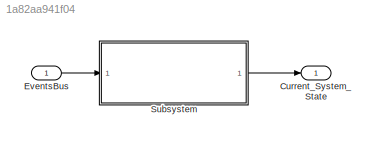
MODEL slx_1a82aa941f04
KIND model
CONFIG AbsTol = auto
CONFIG EnableMultiTasking = off
CONFIG FixedStep = auto
CONFIG MaxStep = auto
CONFIG MinStep = auto
CONFIG RelTol = 1e-3
CONFIG SampleTimeConstraint = Unconstrained
CONFIG SolverName = VariableStepAuto
CONFIG StartTime = 0.0
CONFIG StopTime = inf
BLOCK [Outport] Current_System_State
  OutDataTypeStr = Bus: CurrentStateBus
BLOCK [Inport] EventsBus
  NameLocation = left
  OutDataTypeStr = Bus: EventsBus
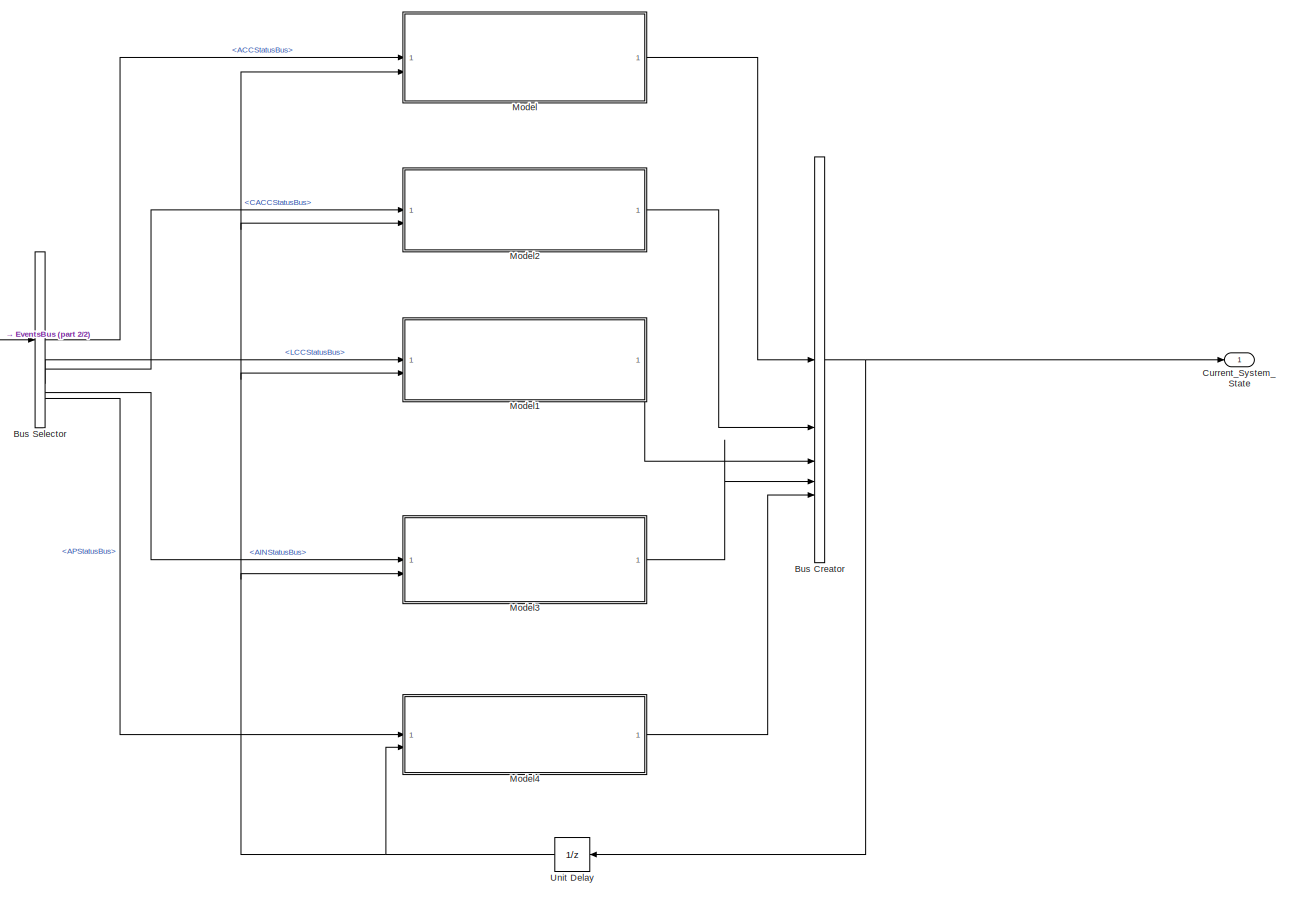
[diagram: Subsystem - part 1/2, most of the canvas]
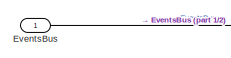
[diagram: Subsystem - part 2/2, middle left region]
BLOCK [SubSystem] Subsystem
BLOCK [BusCreator] Subsystem/Bus Creator
  DisplayOption = bar
  InheritFromInputs = off
  Inputs = 5
  OutDataTypeStr = Bus: CurrentStateBus
BLOCK [BusSelector] Subsystem/Bus Selector
  OutputSignals = ACCStatusBus,CACCStatusBus,LCCStatusBus,AINStatusBus,APStatusBus
BLOCK [Outport] Subsystem/Current_System_State
BLOCK [Inport] Subsystem/EventsBus
  OutDataTypeStr = Bus: EventsBus
BLOCK [ModelReference] Subsystem/Model
  ModelNameDialog = acc
  ModelReferenceVersion = 1.53
BLOCK [ModelReference] Subsystem/Model1
  ModelNameDialog = lcc
  ModelReferenceVersion = 1.39
BLOCK [ModelReference] Subsystem/Model2
  ModelNameDialog = cacc
  ModelReferenceVersion = 1.51
BLOCK [ModelReference] Subsystem/Model3
  ModelNameDialog = ain
  ModelReferenceVersion = 1.47
BLOCK [ModelReference] Subsystem/Model4
  ModelNameDialog = ap
  ModelReferenceVersion = 1.39
BLOCK [UnitDelay] Subsystem/Unit Delay
  HasFrameUpgradeWarning = on
  SampleTime = -1
LINE EventsBus:1 -> Subsystem:1
NET Subsystem/Bus Creator:1 -> Subsystem/Current_System_State:1, Subsystem/Unit Delay:1
LINE Subsystem/Bus Selector:1 -> Subsystem/Model:1
LINE Subsystem/Bus Selector:2 -> Subsystem/Model2:1
LINE Subsystem/Bus Selector:3 -> Subsystem/Model1:1
LINE Subsystem/Bus Selector:4 -> Subsystem/Model3:1
LINE Subsystem/Bus Selector:5 -> Subsystem/Model4:1
LINE Subsystem/EventsBus:1 -> Subsystem/Bus Selector:1
LINE Subsystem/Model1:1 -> Subsystem/Bus Creator:3
LINE Subsystem/Model2:1 -> Subsystem/Bus Creator:2
LINE Subsystem/Model3:1 -> Subsystem/Bus Creator:4
LINE Subsystem/Model4:1 -> Subsystem/Bus Creator:5
LINE Subsystem/Model:1 -> Subsystem/Bus Creator:1
NET Subsystem/Unit Delay:1 -> Subsystem/Model1:2, Subsystem/Model2:2, Subsystem/Model3:2, Subsystem/Model4:2, Subsystem/Model:2
LINE Subsystem:1 -> Current_System_State:1
note: NET lines group one-source signal fan-out (src -> all destinations, sorted); 1:1 wires keep LINE
